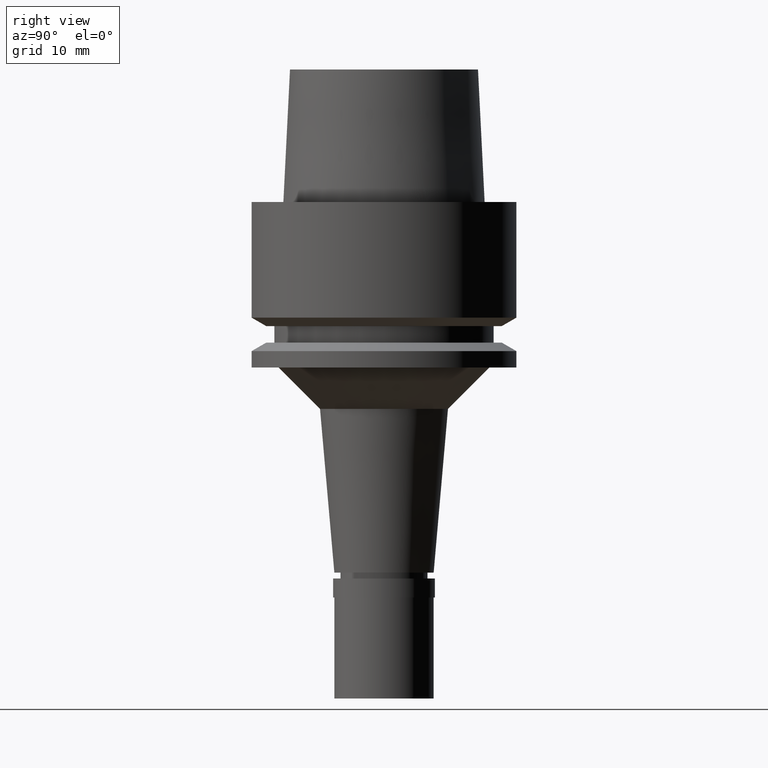
[diagram: clean part render]
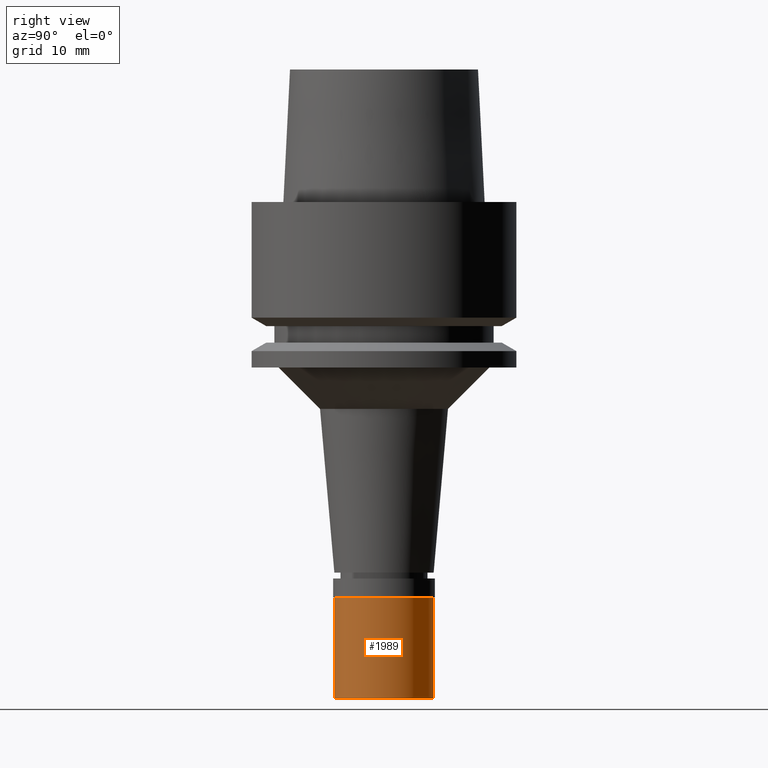
[diagram: same view with one face highlighted and labeled with its STEP entity id]
A machine part, right view. The second image highlights one B-rep face of the part: STEP entity #1989.
In plain terms, the highlighted cylindrical surface (partial cylindrical patch) has radius 6 mm, axis along (0, 0, 1).
Its self-contained STEP definition (entity closure, byte-faithful):
#49 = EDGE_CURVE ( 'NONE', #1881, #1268, #1945, .T. ) ;
#278 = CARTESIAN_POINT ( 'NONE',  ( 0.0000000000000000000, -6.000000000000000000, -2.299999999999999822 ) ) ;
#386 = VERTEX_POINT ( 'NONE', #1186 ) ;
#440 = DIRECTION ( 'NONE',  ( 0.0000000000000000000, 0.0000000000000000000, 1.000000000000000000 ) ) ;
#455 = DIRECTION ( 'NONE',  ( 0.0000000000000000000, 1.000000000000000000, 0.0000000000000000000 ) ) ;
#483 = AXIS2_PLACEMENT_3D ( 'NONE', #1850, #1023, #1671 ) ;
#710 = EDGE_CURVE ( 'NONE', #1402, #1881, #1444, .T. ) ;
#720 = VECTOR ( 'NONE', #1636, 1000.000000000000000 ) ;
#762 = AXIS2_PLACEMENT_3D ( 'NONE', #1906, #440, #2129 ) ;
#882 = CYLINDRICAL_SURFACE ( 'NONE', #483, 6.000000000000000000 ) ;
#958 = ORIENTED_EDGE ( 'NONE', *, *, #710, .T. ) ;
#1023 = DIRECTION ( 'NONE',  ( 0.0000000000000000000, 0.0000000000000000000, 1.000000000000000000 ) ) ;
#1036 = FACE_OUTER_BOUND ( 'NONE', #1617, .T. ) ;
#1186 = CARTESIAN_POINT ( 'NONE',  ( 0.0000000000000000000, 6.000000000000000000, -2.299999999999999822 ) ) ;
#1268 = VERTEX_POINT ( 'NONE', #1595 ) ;
#1402 = VERTEX_POINT ( 'NONE', #2611 ) ;
#1439 = ORIENTED_EDGE ( 'NONE', *, *, #49, .T. ) ;
#1444 = LINE ( 'NONE', #278, #720 ) ;
#1500 = CARTESIAN_POINT ( 'NONE',  ( 0.0000000000000000000, 6.000000000000000000, -2.299999999999999822 ) ) ;
#1569 = VECTOR ( 'NONE', #2551, 1000.000000000000000 ) ;
#1595 = CARTESIAN_POINT ( 'NONE',  ( 0.0000000000000000000, 6.000000000000000000, -14.50000000000000000 ) ) ;
#1617 = EDGE_LOOP ( 'NONE', ( #2045, #958, #1439, #2001 ) ) ;
#1636 = DIRECTION ( 'NONE',  ( 0.0000000000000000000, 0.0000000000000000000, -1.000000000000000000 ) ) ;
#1658 = CARTESIAN_POINT ( 'NONE',  ( 0.0000000000000000000, -6.000000000000000000, -14.50000000000000000 ) ) ;
#1671 = DIRECTION ( 'NONE',  ( 0.0000000000000000000, 1.000000000000000000, 0.0000000000000000000 ) ) ;
#1758 = CIRCLE ( 'NONE', #2652, 6.000000000000000000 ) ;
#1845 = CARTESIAN_POINT ( 'NONE',  ( 0.0000000000000000000, 0.0000000000000000000, -2.299999999999999822 ) ) ;
#1850 = CARTESIAN_POINT ( 'NONE',  ( 0.0000000000000000000, 0.0000000000000000000, -15.22500000000000142 ) ) ;
#1881 = VERTEX_POINT ( 'NONE', #1658 ) ;
#1906 = CARTESIAN_POINT ( 'NONE',  ( 0.0000000000000000000, 0.0000000000000000000, -14.50000000000000000 ) ) ;
#1945 = CIRCLE ( 'NONE', #762, 6.000000000000000000 ) ;
#1989 = ADVANCED_FACE ( 'NONE', ( #1036 ), #882, .T. ) ;
#2001 = ORIENTED_EDGE ( 'NONE', *, *, #2365, .F. ) ;
#2045 = ORIENTED_EDGE ( 'NONE', *, *, #2363, .T. ) ;
#2129 = DIRECTION ( 'NONE',  ( 0.0000000000000000000, -1.000000000000000000, 0.0000000000000000000 ) ) ;
#2363 = EDGE_CURVE ( 'NONE', #386, #1402, #1758, .T. ) ;
#2365 = EDGE_CURVE ( 'NONE', #386, #1268, #2540, .T. ) ;
#2540 = LINE ( 'NONE', #1500, #1569 ) ;
#2551 = DIRECTION ( 'NONE',  ( 0.0000000000000000000, 0.0000000000000000000, -1.000000000000000000 ) ) ;
#2611 = CARTESIAN_POINT ( 'NONE',  ( 0.0000000000000000000, -6.000000000000000000, -2.299999999999999822 ) ) ;
#2652 = AXIS2_PLACEMENT_3D ( 'NONE', #1845, #2666, #455 ) ;
#2666 = DIRECTION ( 'NONE',  ( 0.0000000000000000000, 0.0000000000000000000, -1.000000000000000000 ) ) ;